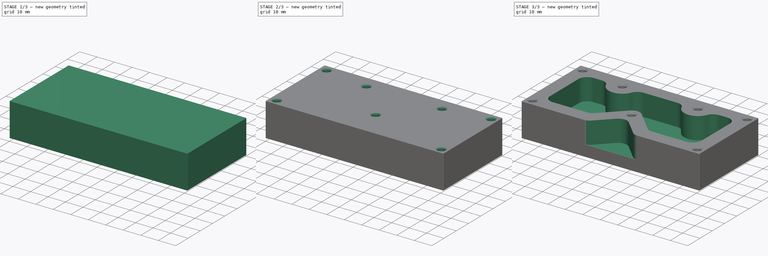
[diagram: build sequence overview — one tinted view per stage of 3, left to right]
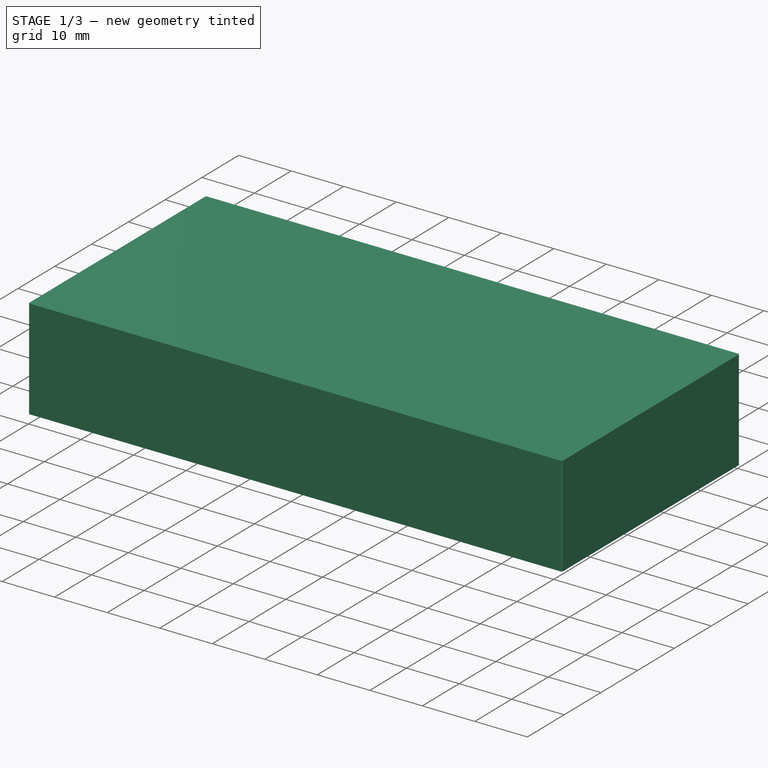
[diagram: stage 1 of 3 — iso view after this stage's code; geometry added in this stage tinted green]
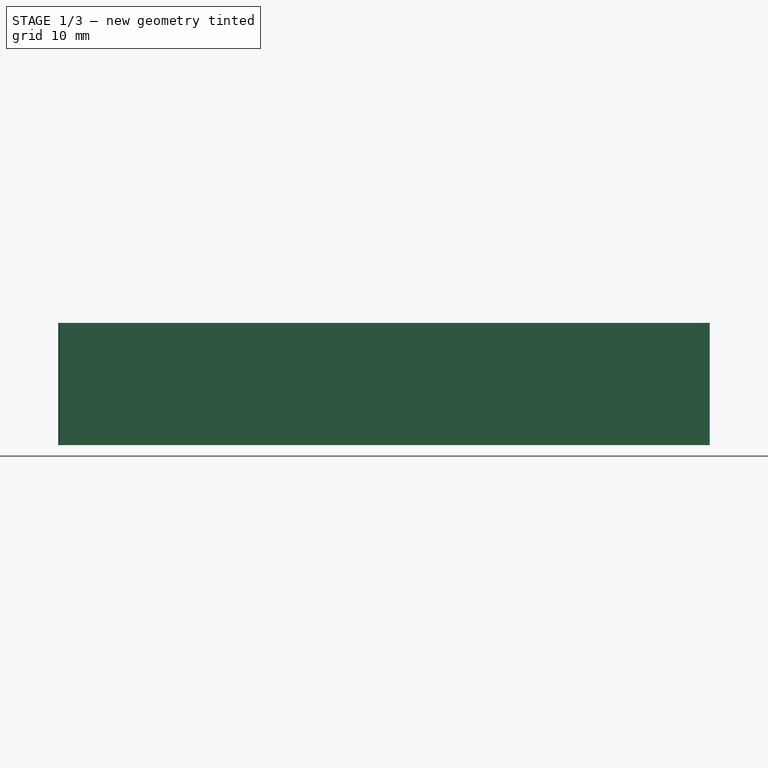
[diagram: stage 1 of 3 — front view after this stage's code; geometry added in this stage tinted green]
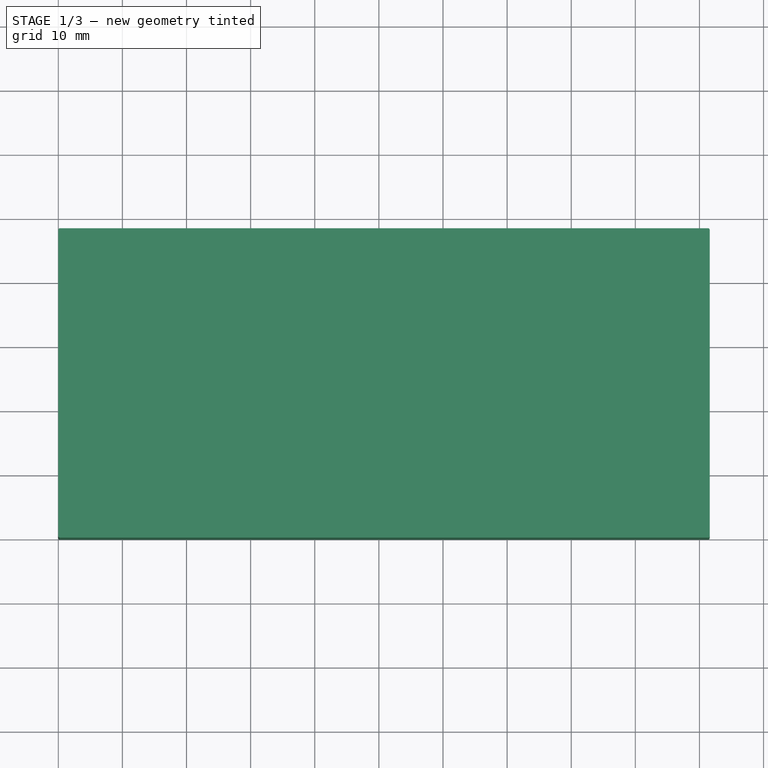
[diagram: stage 1 of 3 — top view after this stage's code; geometry added in this stage tinted green]
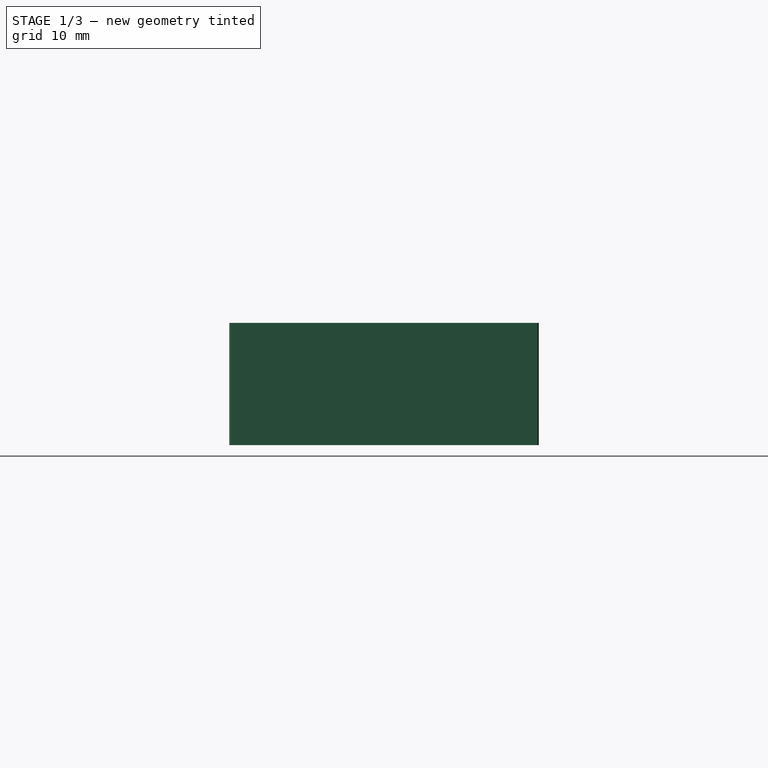
[diagram: stage 1 of 3 — right view after this stage's code; geometry added in this stage tinted green]
FCSTD DOCUMENT  (FreeCAD 0.19R24291 (Git))
Label: Titan_1M
License: All rights reserved
LicenseURL: http://en.wikipedia.org/wiki/All_rights_reserved
objects: PartDesign::Fillet×2, Sketcher::SketchObject×2, PartDesign::AdditiveBox×1, PartDesign::Hole×1, PartDesign::Pocket×1, PartDesign::Body×1
note: 13 computed .brp shape members not serialized (recipe doc carries the construction recipe); baked Part::Feature solids carry a one-line shape summary decoded from their .brp

FEATURE [PartDesign::AdditiveBox] Box
  AttacherType = Attacher::AttachEngine3D
  Height = 19.05
  Length = 101.6
  Width = 48.26
FEATURE [PartDesign::Fillet] Fillet
  Base = -> Box [Edge1,Edge3,Edge7,Edge5]
  BaseFeature = -> Box
  Radius = 0.254
  SupportTransform = false
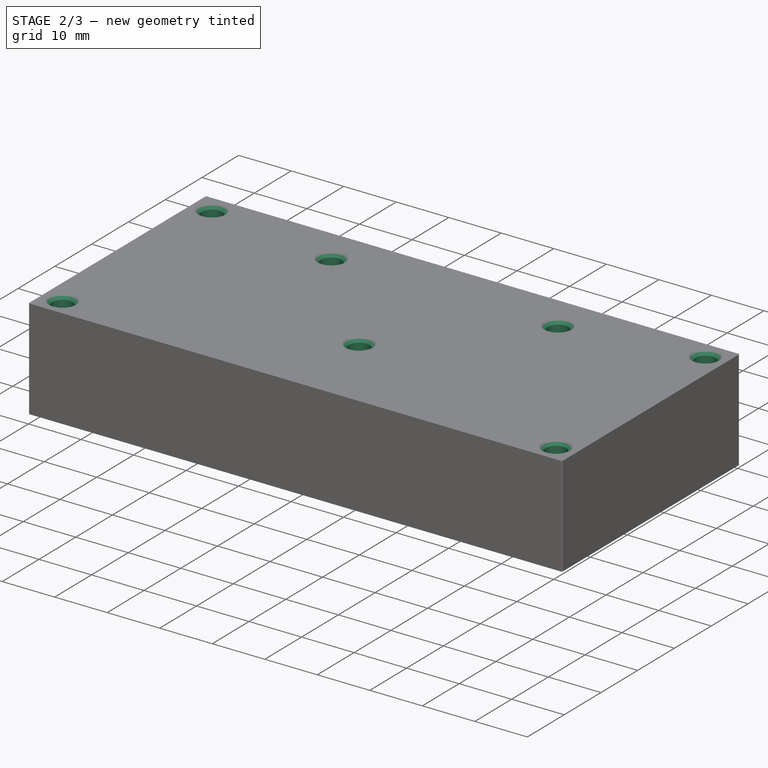
[diagram: stage 2 of 3 — iso view after this stage's code; geometry added in this stage tinted green]
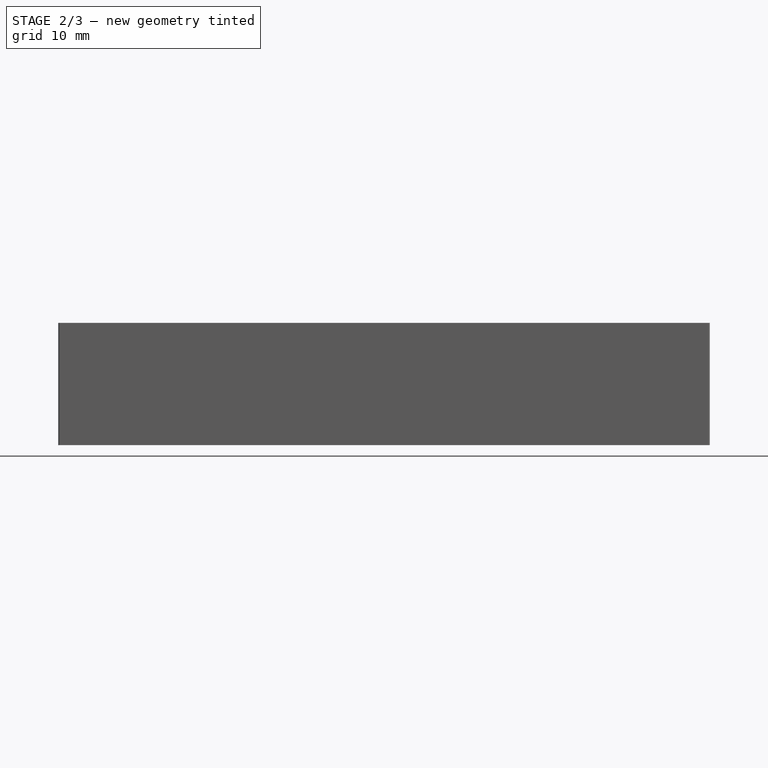
[diagram: stage 2 of 3 — front view after this stage's code; geometry added in this stage tinted green]
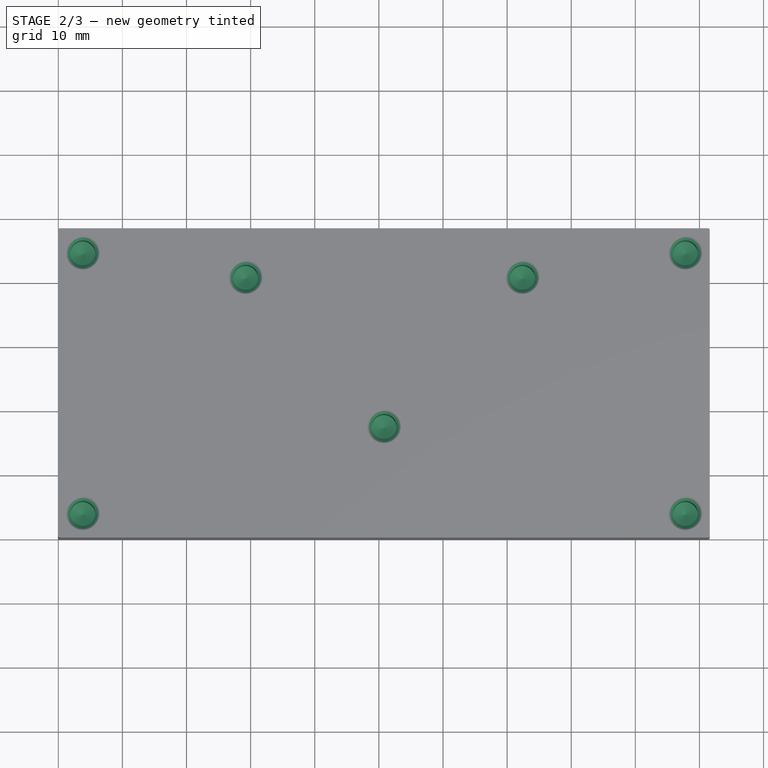
[diagram: stage 2 of 3 — top view after this stage's code; geometry added in this stage tinted green]
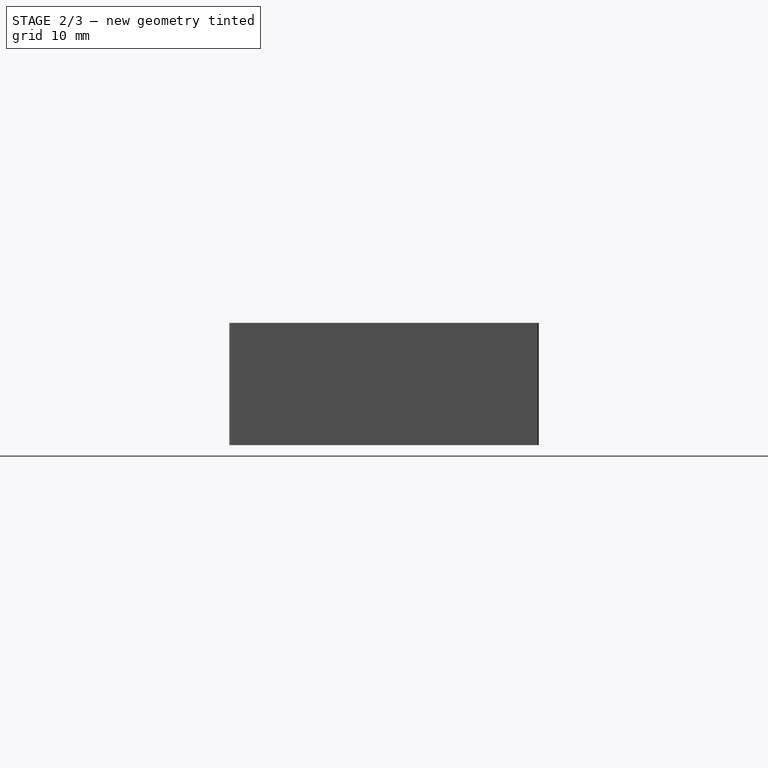
[diagram: stage 2 of 3 — right view after this stage's code; geometry added in this stage tinted green]
FEATURE [Sketcher::SketchObject] Sketch001  label="sketch_holes"
  ExternalGeometry = -> [Fillet]
  FullyConstrained = true
  MapMode = 5
  Placement = pos=(0,0,19.05) rot=(0,0,1;0rad)
  Support = -> [Fillet]
  sketch-geometry (12):
    g0: Circle CenterX=3.81 CenterY=44.45 CenterZ=0 NormalX=0 NormalY=0 NormalZ=1 AngleXU=0 Radius=2.413
    g1: Circle CenterX=97.79 CenterY=44.45 CenterZ=0 NormalX=0 NormalY=0 NormalZ=1 AngleXU=0 Radius=2.413
    g2: Circle CenterX=29.21 CenterY=40.64 CenterZ=0 NormalX=0 NormalY=0 NormalZ=1 AngleXU=0 Radius=2.413
    g3: Circle CenterX=72.39 CenterY=40.64 CenterZ=0 NormalX=0 NormalY=0 NormalZ=1 AngleXU=0 Radius=2.413
    g4: Circle CenterX=3.81 CenterY=3.81 CenterZ=0 NormalX=0 NormalY=0 NormalZ=1 AngleXU=0 Radius=2.413
    g5: Circle CenterX=97.79 CenterY=3.81 CenterZ=0 NormalX=0 NormalY=0 NormalZ=1 AngleXU=0 Radius=2.413
    g6: Circle CenterX=50.8 CenterY=17.3736 CenterZ=0 NormalX=0 NormalY=0 NormalZ=1 AngleXU=0 Radius=2.413
    g7: LineSegment StartX=29.21 StartY=40.64 StartZ=0 EndX=72.39 EndY=40.64 EndZ=0
    g8: LineSegment StartX=3.81 StartY=44.45 StartZ=0 EndX=97.79 EndY=44.45 EndZ=0
    g9: LineSegment StartX=3.81 StartY=3.81 StartZ=0 EndX=97.79 EndY=3.81 EndZ=0
    g10: LineSegment StartX=97.79 StartY=44.45 StartZ=0 EndX=97.79 EndY=3.81 EndZ=0
    g11: LineSegment StartX=3.81 StartY=44.45 StartZ=0 EndX=3.81 EndY=3.81 EndZ=0
  constraints (31):
    c: Equal(g0,g4)
    c: Equal(g4,g2)
    c: Equal(g2,g6)
    c: Equal(g6,g3)
    c: Equal(g3,g5)
    c: Equal(g5,g1)
    c: Diameter(g5) = 4.826
    c: Coincident(g7,g2)
    c: Coincident(g7,g3)
    c: Coincident(g8,g0)
    c: Coincident(g8,g1)
    c: Horizontal(g8)
    c: Coincident(g9,g4)
    c: Coincident(g9,g5)
    c: Horizontal(g9)
    c: Coincident(g10,g1)
    c: Coincident(g10,g5)
    c: Vertical(g10)
    c: DistanceX(g-1,g0) = 3.81
    c: DistanceY(g0,g-3) = 3.81
    c: DistanceY(g4,g-3) = 44.45
    c: Coincident(g11,g0)
    c: Coincident(g11,g4)
    c: Vertical(g11)
    c: Horizontal(g7)
    c: DistanceX(g-1,g2) = 29.21
    c: DistanceX(g-1,g3) = 72.39
    c: DistanceY(g2,g-3) = 7.62
    c: DistanceX(g-1,g1) = 97.79
    c: DistanceX(g-1,g6) = 50.8
    c: DistanceY(g6,g-3) = 30.8864
FEATURE [PartDesign::Hole] Hole
  BaseFeature = -> Fillet
  Depth = 13.4461
  DepthType = 0
  Diameter = 3.9
  DrillForDepth = false
  DrillPoint = 1
  DrillPointAngle = 118
  HoleCutCountersinkAngle = 82
  HoleCutCustomValues = false
  HoleCutDepth = 0
  HoleCutDiameter = 5.1816
  HoleCutType = 2
  ModelActualThread = false
  Profile = -> Sketch001
  Tapered = false
  TaperedAngle = 90
  ThreadAngle = 60
  ThreadClass = 0
  ThreadCutOffInner = 0.114532
  ThreadCutOffOuter = 0.229064
  ThreadDirection = 0
  ThreadFit = 0
  ThreadPitch = 1.058
  ThreadSize = 7
  ThreadType = 3
  Threaded = true
  expr: Depth = 0.38" + 2.5" / 32 + 1" / 32 + 0.04"
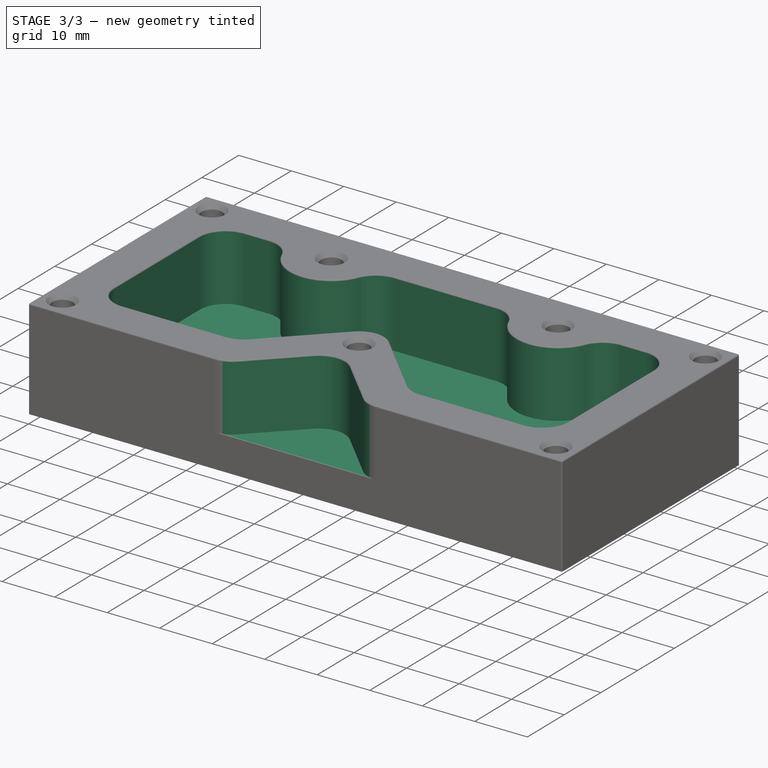
[diagram: stage 3 of 3 — iso view after this stage's code; geometry added in this stage tinted green]
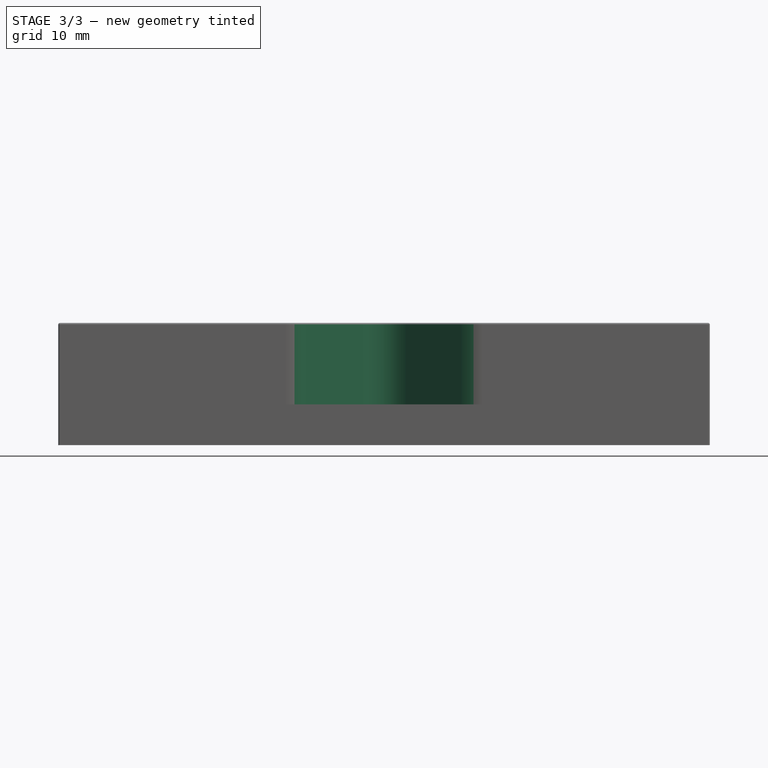
[diagram: stage 3 of 3 — front view after this stage's code; geometry added in this stage tinted green]
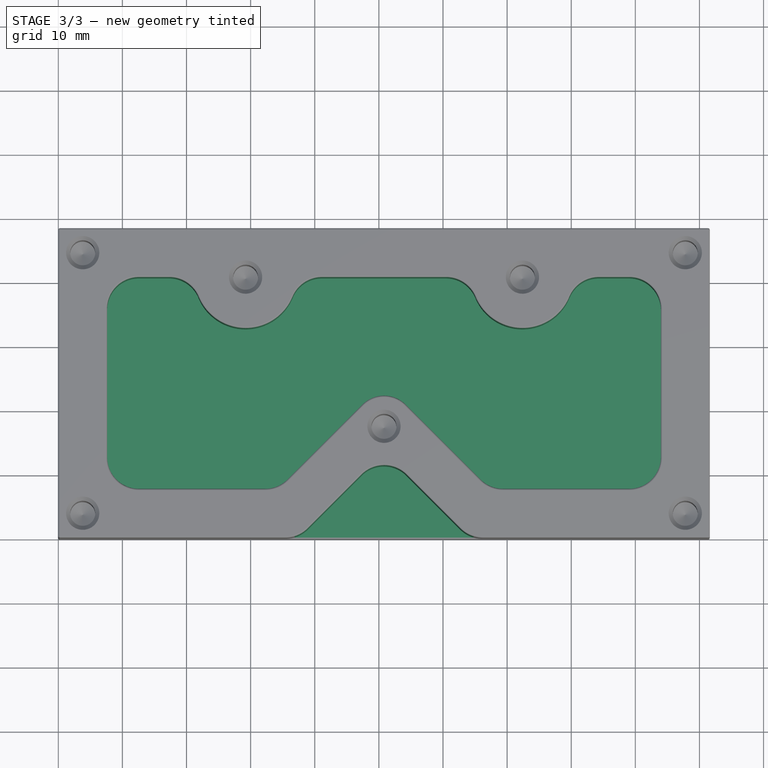
[diagram: stage 3 of 3 — top view after this stage's code; geometry added in this stage tinted green]
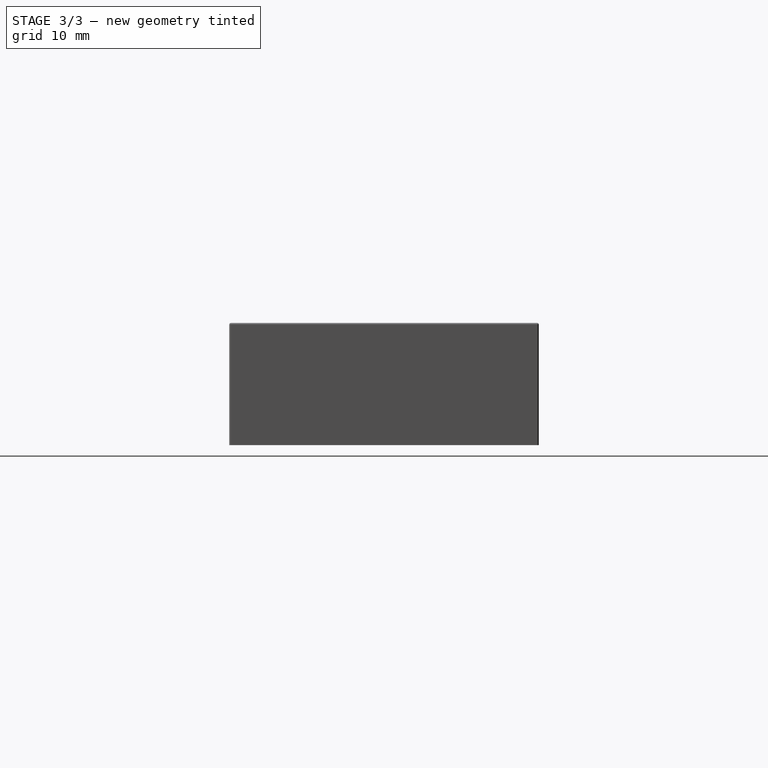
[diagram: stage 3 of 3 — right view after this stage's code; geometry added in this stage tinted green]
FEATURE [Sketcher::SketchObject] Sketch  label="sketch_pocket"
  ExternalGeometry = -> [Hole]
  FullyConstrained = true
  MapMode = 5
  Placement = pos=(0,0,19.05) rot=(0,0,1;0rad)
  Support = -> [Hole]
  sketch-geometry (31):
    g0: LineSegment StartX=7.62 StartY=12.573 StartZ=0 EndX=7.62 EndY=35.687 EndZ=0
    g1: ArcOfCircle CenterX=12.573 CenterY=35.687 CenterZ=0 NormalX=0 NormalY=0 NormalZ=1 AngleXU=0 Radius=4.953 StartAngle=1.5708 EndAngle=3.14159
    g2: LineSegment StartX=12.573 StartY=40.64 StartZ=0 EndX=17.2953 EndY=40.64 EndZ=0
    g3: ArcOfCircle CenterX=17.2953 CenterY=35.687 CenterZ=0 NormalX=0 NormalY=0 NormalZ=1 AngleXU=0 Radius=4.953 StartAngle=0.393971 EndAngle=1.5708
    g4: ArcOfCircle CenterX=29.21 CenterY=40.64 CenterZ=0 NormalX=0 NormalY=0 NormalZ=1 AngleXU=0 Radius=7.9502 StartAngle=3.53556 EndAngle=5.88921
    g5: ArcOfCircle CenterX=41.1247 CenterY=35.687 CenterZ=0 NormalX=0 NormalY=0 NormalZ=1 AngleXU=0 Radius=4.953 StartAngle=1.5708 EndAngle=2.74762
    g6: LineSegment StartX=41.1247 StartY=40.64 StartZ=0 EndX=60.4753 EndY=40.64 EndZ=0
    g7: ArcOfCircle CenterX=60.4753 CenterY=35.687 CenterZ=0 NormalX=0 NormalY=0 NormalZ=1 AngleXU=0 Radius=4.953 StartAngle=0.393971 EndAngle=1.5708
    g8: ArcOfCircle CenterX=72.39 CenterY=40.64 CenterZ=0 NormalX=0 NormalY=0 NormalZ=1 AngleXU=0 Radius=7.9502 StartAngle=3.53556 EndAngle=5.88921
    g9: ArcOfCircle CenterX=84.3047 CenterY=35.687 CenterZ=0 NormalX=0 NormalY=0 NormalZ=1 AngleXU=0 Radius=4.953 StartAngle=1.5708 EndAngle=2.74762
    g10: LineSegment StartX=84.3047 StartY=40.64 StartZ=0 EndX=89.027 EndY=40.64 EndZ=0
    g11: ArcOfCircle CenterX=89.027 CenterY=35.687 CenterZ=0 NormalX=0 NormalY=0 NormalZ=1 AngleXU=0 Radius=4.953 StartAngle=7e-16 EndAngle=1.5708
    g12: LineSegment StartX=93.98 StartY=35.687 StartZ=0 EndX=93.98 EndY=12.573 EndZ=0
    g13: ArcOfCircle CenterX=89.027 CenterY=12.573 CenterZ=0 NormalX=0 NormalY=0 NormalZ=1 AngleXU=0 Radius=4.953 StartAngle=4.71239 EndAngle=6.28319
    g14: LineSegment StartX=89.027 StartY=7.62 StartZ=0 EndX=69.3584 EndY=7.62 EndZ=0
    g15: ArcOfCircle CenterX=69.3584 CenterY=12.573 CenterZ=0 NormalX=0 NormalY=0 NormalZ=1 AngleXU=0 Radius=4.953 StartAngle=3.92699 EndAngle=4.71239
    g16: LineSegment StartX=65.8561 StartY=9.0707 StartZ=0 EndX=54.1766 EndY=20.7502 EndZ=0
    g17: ArcOfCircle CenterX=50.8 CenterY=17.3736 CenterZ=0 NormalX=0 NormalY=0 NormalZ=1 AngleXU=0 Radius=4.7752 StartAngle=0.785398 EndAngle=2.35619
    g18: LineSegment StartX=47.4234 StartY=20.7502 StartZ=0 EndX=35.7439 EndY=9.0707 EndZ=0
    g19: ArcOfCircle CenterX=32.2416 CenterY=12.573 CenterZ=0 NormalX=0 NormalY=0 NormalZ=1 AngleXU=0 Radius=4.953 StartAngle=4.71239 EndAngle=5.49779
    g20: LineSegment StartX=32.2416 StartY=7.62 StartZ=0 EndX=12.573 EndY=7.62 EndZ=0
    g21: ArcOfCircle CenterX=12.573 CenterY=12.573 CenterZ=0 NormalX=0 NormalY=0 NormalZ=1 AngleXU=0 Radius=4.953 StartAngle=3.14159 EndAngle=4.71239
    g22: LineSegment StartX=17.2953 StartY=40.64 StartZ=0 EndX=41.1247 EndY=40.64 EndZ=0
    g23: LineSegment StartX=60.4753 StartY=40.64 StartZ=0 EndX=84.3047 EndY=40.64 EndZ=0
    g24: LineSegment StartX=32.2416 StartY=7.62 StartZ=0 EndX=69.3584 EndY=7.62 EndZ=0
    g25: LineSegment StartX=38.8961 StartY=1.4507 StartZ=0 EndX=47.2977 EndY=9.8523 EndZ=0
    g26: ArcOfCircle CenterX=50.8 CenterY=6.35 CenterZ=0 NormalX=0 NormalY=0 NormalZ=1 AngleXU=0 Radius=4.953 StartAngle=0.785398 EndAngle=2.35619
    g27: LineSegment StartX=54.3023 StartY=9.8523 StartZ=0 EndX=62.7039 EndY=1.4507 EndZ=0
    g28: ArcOfCircle CenterX=66.2062 CenterY=4.953 CenterZ=0 NormalX=0 NormalY=0 NormalZ=1 AngleXU=0 Radius=4.953 StartAngle=3.92699 EndAngle=4.71239
    g29: ArcOfCircle CenterX=35.3938 CenterY=4.953 CenterZ=0 NormalX=0 NormalY=0 NormalZ=1 AngleXU=0 Radius=4.953 StartAngle=4.71239 EndAngle=5.49779
    g30: LineSegment StartX=35.3938 StartY=0 StartZ=0 EndX=66.2062 EndY=0 EndZ=0
  constraints (75):
    c: Vertical(g0)
    c: Tangent(g0,g1) = 1.5708
    c: Horizontal(g2)
    c: Tangent(g2,g3) = 1.5708
    c: Tangent(g3,g4) = 1.5708
    c: Tangent(g4,g5) = 1.5708
    c: Horizontal(g6)
    c: Tangent(g6,g7) = 1.5708
    c: Tangent(g7,g8) = 1.5708
    c: Tangent(g8,g9) = 1.5708
    c: Horizontal(g10)
    c: Tangent(g10,g11) = 1.5708
    c: Vertical(g12)
    c: Tangent(g12,g13) = 1.5708
    c: Horizontal(g14)
    c: Tangent(g14,g15) = 1.5708
    c: Tangent(g16,g17) = -1.5708
    c: Tangent(g18,g19) = 1.5708
    c: Horizontal(g20)
    c: Tangent(g20,g21) = 1.5708
    c: Coincident(g22,g2)
    c: Horizontal(g22)
    c: Coincident(g23,g6)
    c: Horizontal(g23)
    c: Tangent(g5,g6) = 1.5708
    c: Coincident(g5,g22)
    c: Tangent(g9,g10) = 1.5708
    c: Coincident(g23,g9)
    c: Tangent(g19,g20) = 1.5708
    c: Tangent(g15,g16) = 1.5708
    c: Tangent(g17,g18) = -1.5708
    c: Tangent(g21,g0) = 1.5708
    c: Tangent(g1,g2) = 1.5708
    c: Tangent(g11,g12) = 1.5708
    c: Tangent(g13,g14) = 1.5708
    c: Coincident(g24,g19)
    c: Coincident(g24,g14)
    c: Horizontal(g24)
    c: Equal(g3,g5)
    c: Equal(g5,g7)
    c: Equal(g7,g9)
    c: Equal(g9,g11)
    c: Equal(g11,g13)
    c: Equal(g13,g15)
    c: Equal(g15,g19)
    c: Equal(g19,g21)
    c: Equal(g21,g1)
    c: Radius(g17) = 4.7752
    c: Equal(g4,g8)
    c: Radius(g4) = 7.9502
    c: Radius(g1) = 4.953
    c: DistanceX(g-1,g0) = 7.62
    c: DistanceX(g-1,g11) = 93.98
    c: PointOnObject(g4,g22)
    c: Tangent(g25,g26) = 1.5708
    c: Tangent(g26,g27) = 1.5708
    c: Tangent(g27,g28) = -1.5708
    c: PointOnObject(g28,g-1)
    c: Tangent(g25,g29) = -1.5708
    c: PointOnObject(g29,g-1)
    c: Tangent(g30,g29) = -1.5708
    c: Tangent(g30,g28) = -1.5708
    c: Equal(g29,g28)
    c: Equal(g28,g26)
    c: Equal(g26,g1)
    c: DistanceX(g-1,g26) = 50.8
    c: Coincident(g4,g-4)
    c: Coincident(g8,g-5)
    c: Coincident(g17,g-6)
    c: DistanceY(g26,g-3) = 41.91
    c: DistanceY(g20,g-3) = 40.64
    c: Angle(g16,g24) = 0.785398
    c: Equal(g18,g16)
    c: Angle(g27,g30) = 0.785398
    c: Equal(g25,g27)
FEATURE [PartDesign::Pocket] Pocket
  BaseFeature = -> Hole
  Length = 12.7
  Length2 = 99.9998
  Profile = -> Sketch
  Type = 0
FEATURE [PartDesign::Fillet] Fillet001
  Base = -> Pocket [Edge16,Edge22]
  BaseFeature = -> Pocket
  Radius = 0.254
  SupportTransform = false
FEATURE [PartDesign::Body] Body
  Group = -> [Box,Fillet,Sketch001,Hole,Sketch,Pocket,Fillet001]
  Origin = -> Origin
  Tip = -> Fillet001
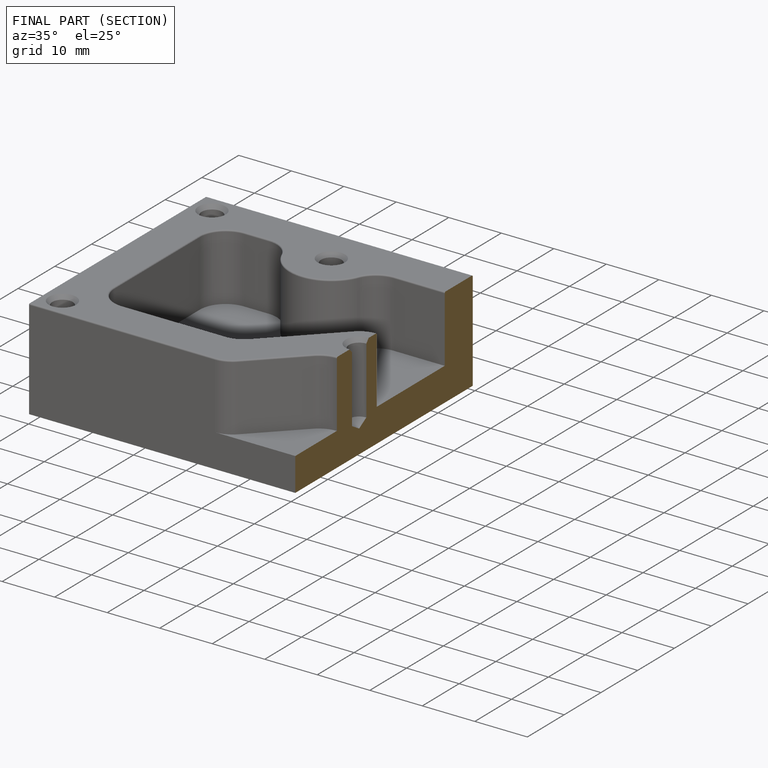
[diagram: finished part — half-section view (interior)]
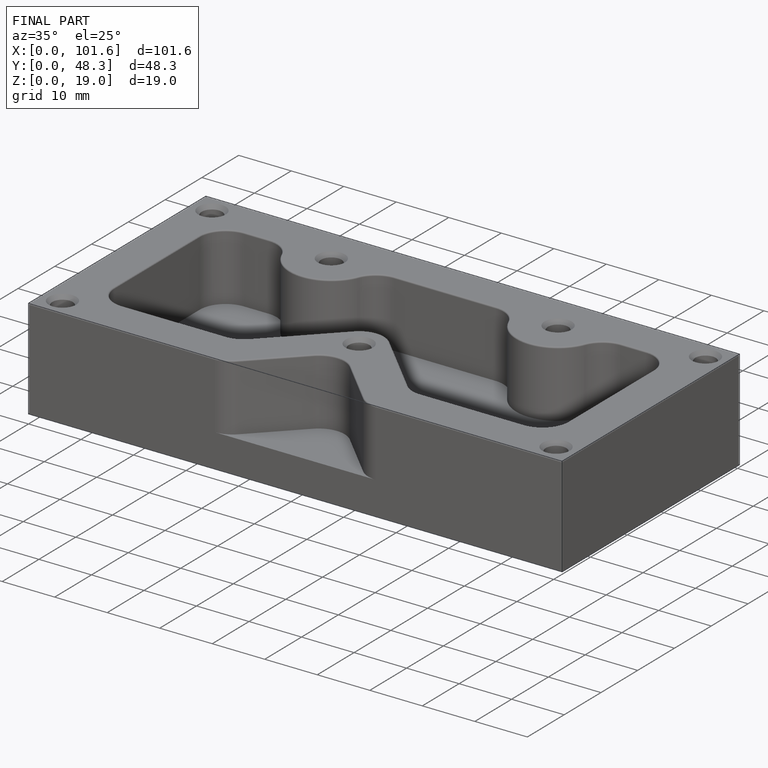
[diagram: finished part — iso view with bounding-box wireframe]
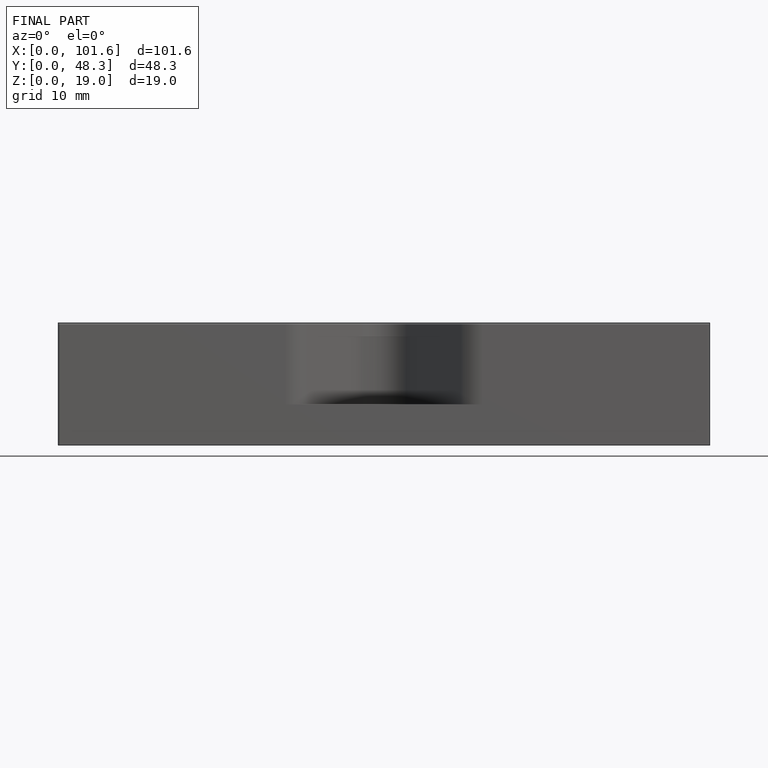
[diagram: finished part — front view with bounding-box wireframe]
